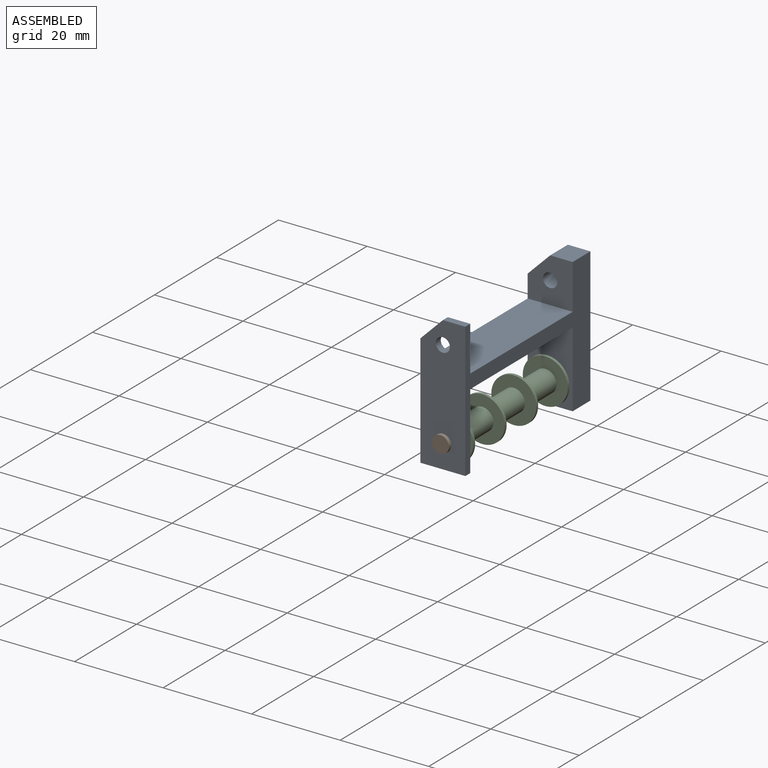
[diagram: assembled view]
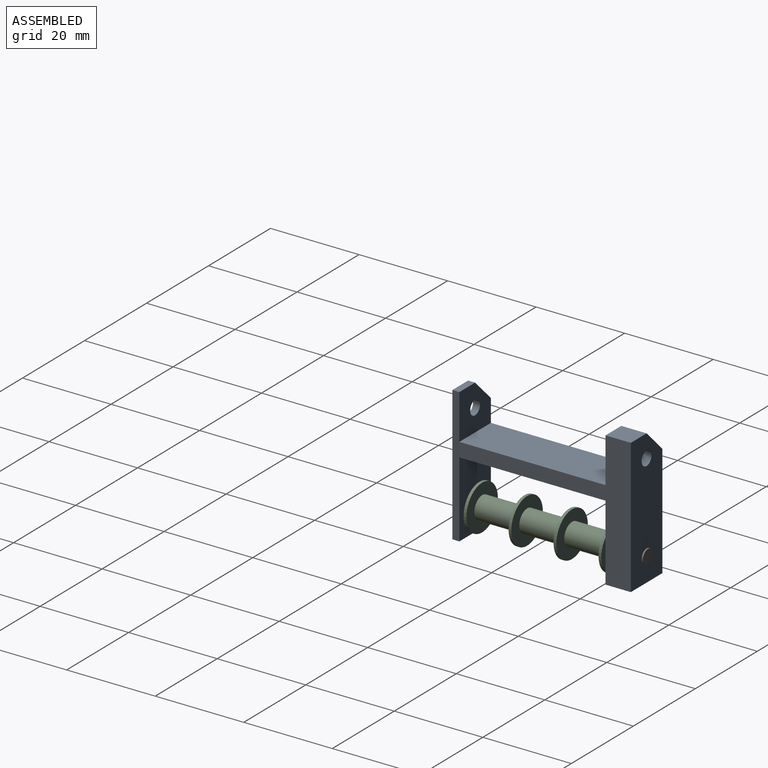
[diagram: assembled view, second angle]
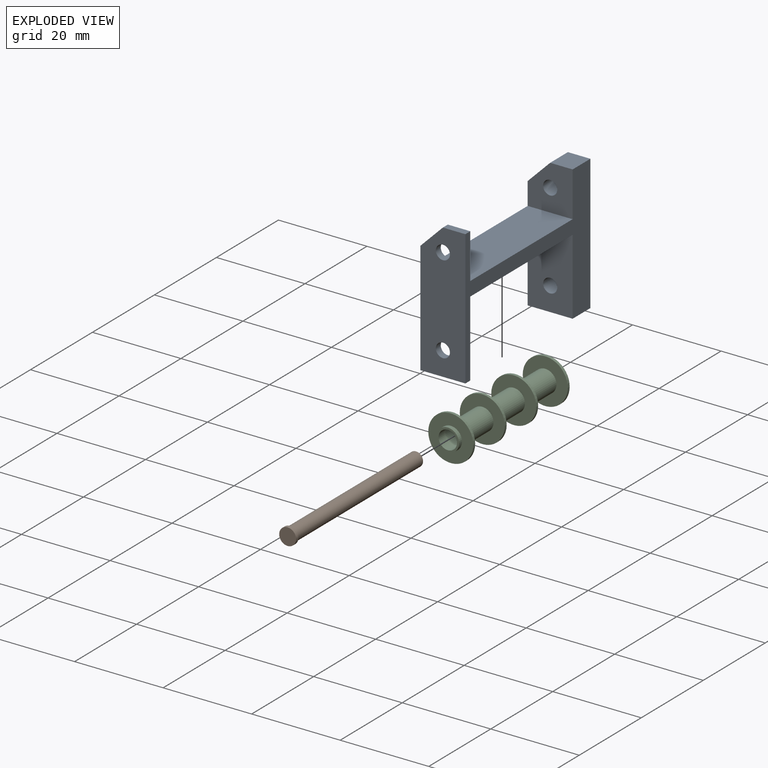
[diagram: exploded view]
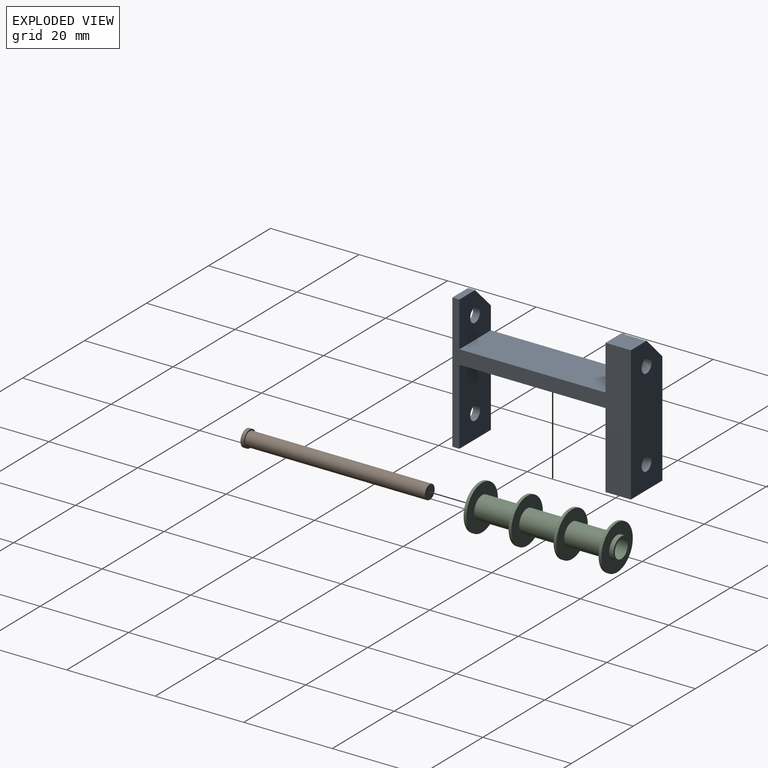
[diagram: exploded view, second angle]
ASSEMBLY  parts=3 mates=2
PART A: 20 faces, bbox 10.2x40.3x30.5 mm
  f0: plane 10.16x10.16mm, normal (0,-1,0), area 82.4mm2, adj f1,f2,f4,f5,f7,f18
  f1: plane 5.72x5.08mm, normal (-0.71,0,0.71), area 41.1mm2, adj f0,f2,f5,f15
  f2: plane 40.32x25.4mm, normal (-1,0,0), area 290.3mm2, adj f0,f1,f3,f6,f7,f8,f9,f11
  f3: plane 10.16x5.72mm, normal (0,0,-1), area 58.1mm2, adj f2,f4,f6,f15
  f4: plane 40.32x30.48mm, normal (1,0,0), area 327.4mm2, adj f0,f3,f5,f6,f7,f8,f9,f10
  f5: plane 5.72x5.08mm, normal (0,0,1), area 29mm2, adj f0,f1,f4,f15
  f6: plane 17.15x10.16mm, normal (0,-1,0), area 166.3mm2, adj f2,f3,f4,f8,f16
  f7: plane 33.02x10.16mm, normal (0,0,1), area 335.5mm2, adj f0,f2,f4,f14
  f8: plane 33.02x10.16mm, normal (0,0,-1), area 335.5mm2, adj f2,f4,f6,f9
  f9: plane 17.15x10.16mm, normal (0,1,0), area 166.3mm2, adj f2,f4,f8,f12,f17
  f10: plane 5.08x1.59mm, normal (0,0,1), area 8.1mm2, adj f4,f11,f13,f14
  f11: plane 5.08x5.08mm, normal (-0.71,0,0.71), area 11.4mm2, adj f2,f10,f13,f14
  f12: plane 10.16x1.59mm, normal (0,0,-1), area 16.1mm2, adj f2,f4,f9,f13
  f13: plane 30.48x10.16mm, normal (0,-1,0), area 280.9mm2, adj f2,f4,f10,f11,f12,f17,f19
  f14: plane 10.16x10.16mm, normal (0,1,0), area 82.4mm2, adj f2,f4,f7,f10,f11,f19
  f15: plane 30.48x10.16mm, normal (0,1,0), area 280.9mm2, adj f1,f2,f3,f4,f5,f16,f18
  f16: cylinder r=1.59mm len=5.72mm, axis (0,-1,0), area 57mm2, adj f6,f15
  f17: cylinder r=1.59mm len=3.18mm, axis (0,-1,0), area 15.8mm2, adj f9,f13
  f18: cylinder r=1.59mm len=5.72mm, axis (0,-1,0), area 57mm2, adj f0,f15
  f19: cylinder r=1.59mm len=3.18mm, axis (0,-1,0), area 15.8mm2, adj f13,f14
PART B: 5 faces, bbox 3.8x3.8x41.4 mm
  f0: cylinder r=1.59mm len=40.64mm, axis (0,0,-1), area 405.4mm2, adj f1,f4
  f1: plane 3.18x3.18mm, normal (0,0,-1), area 7.9mm2, adj f0
  f2: cylinder r=1.91mm len=3.81mm, axis (0,0,-1), area 9.5mm2, adj f3,f4
  f3: plane 3.81x3.81mm, normal (0,0,1), area 11.4mm2, adj f2
  f4: plane 3.81x3.81mm, normal (0,0,-1), area 3.5mm2, adj f0,f2
PART C: 20 faces, bbox 10.2x10.2x33 mm
  f0: cylinder r=2.54mm len=5.08mm, axis (0,0,-1), area 15.2mm2, adj f6,f17
  f1: cylinder r=2.54mm len=9.53mm, axis (0,0,-1), area 152mm2, adj f14,f18
  f2: cylinder r=2.54mm len=9.53mm, axis (0,0,-1), area 152mm2, adj f11,f15
  f3: cylinder r=2.54mm len=9.53mm, axis (0,0,-1), area 152mm2, adj f8,f12
  f4: cylinder r=2.54mm len=5.08mm, axis (0,0,-1), area 15.2mm2, adj f5,f9
  f5: plane 5.08x5.08mm, normal (0,0,1), area 6.6mm2, adj f4,f19
  f6: plane 5.08x5.08mm, normal (0,0,-1), area 6.6mm2, adj f0,f19
  f7: cylinder r=5.08mm len=10.16mm, axis (0,0,1), area 20.3mm2, adj f8,f9
  f8: plane 10.16x10.16mm, normal (0,0,-1), area 60.8mm2, adj f3,f7
  f9: plane 10.16x10.16mm, normal (0,0,1), area 60.8mm2, adj f4,f7
  f10: cylinder r=5.08mm len=10.16mm, axis (0,0,1), area 20.3mm2, adj f11,f12
  f11: plane 10.16x10.16mm, normal (0,0,-1), area 60.8mm2, adj f2,f10
  f12: plane 10.16x10.16mm, normal (0,0,1), area 60.8mm2, adj f3,f10
  f13: cylinder r=5.08mm len=10.16mm, axis (0,0,1), area 20.3mm2, adj f14,f15
  f14: plane 10.16x10.16mm, normal (0,0,-1), area 60.8mm2, adj f1,f13
  f15: plane 10.16x10.16mm, normal (0,0,1), area 60.8mm2, adj f2,f13
  f16: cylinder r=5.08mm len=10.16mm, axis (0,0,1), area 20.3mm2, adj f17,f18
  f17: plane 10.16x10.16mm, normal (0,0,-1), area 60.8mm2, adj f0,f16
  f18: plane 10.16x10.16mm, normal (0,0,1), area 60.8mm2, adj f1,f16
  f19: cylinder r=2.09mm len=33.02mm, axis (0,0,1), area 433.1mm2, adj f5,f6
PLACE A t=(-20.33,2.84,-2.81)mm
PLACE B rot(axis=(1,0,0),90deg) t=(-43.69,7.28,12.17)mm
PLACE C rot(axis=(1,0,0),90deg) t=(-31.47,1.25,-13.62)mm
MATE revolute A.f16 <-> C.f0  axis (0,1,0) through (-31.47,-31.77,-13.62)mm
MATE fastened A.f16 <-> B.f0  axis (0,-1,0) through (-31.47,-33.36,-13.62)mm
